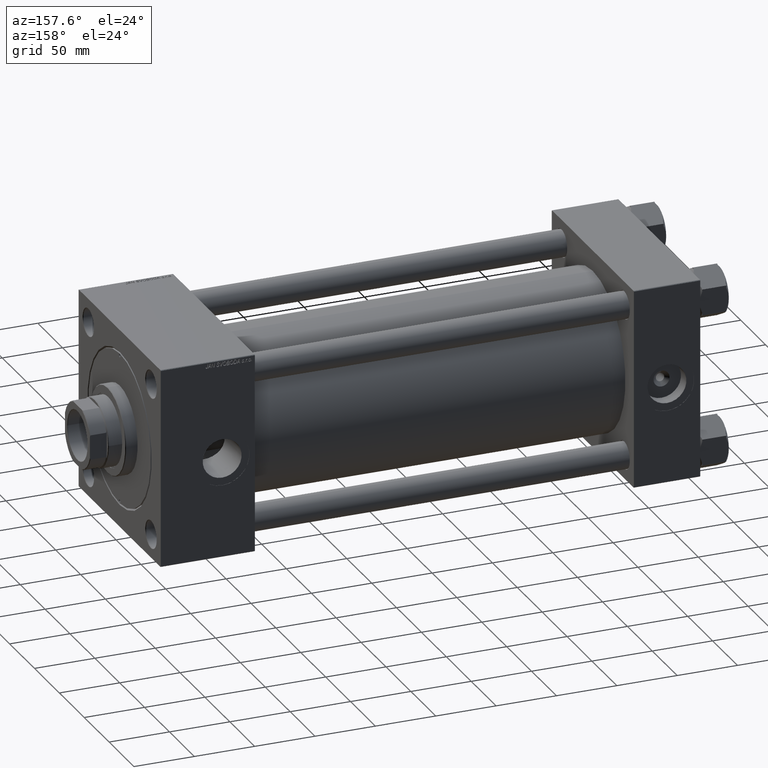
[diagram: clean part render]
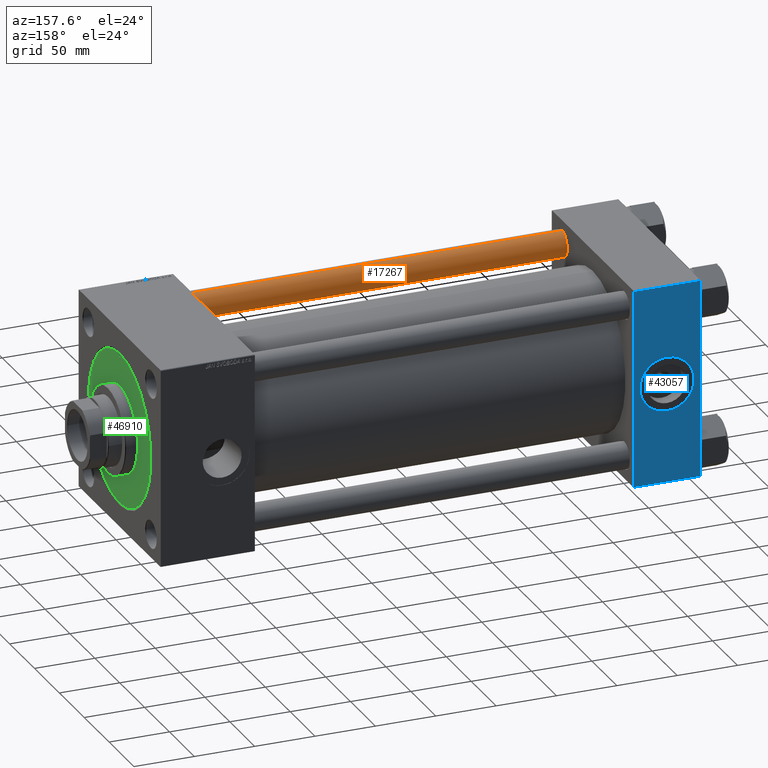
[diagram: same view with three faces highlighted in distinct colors, each labeled with its STEP entity id]
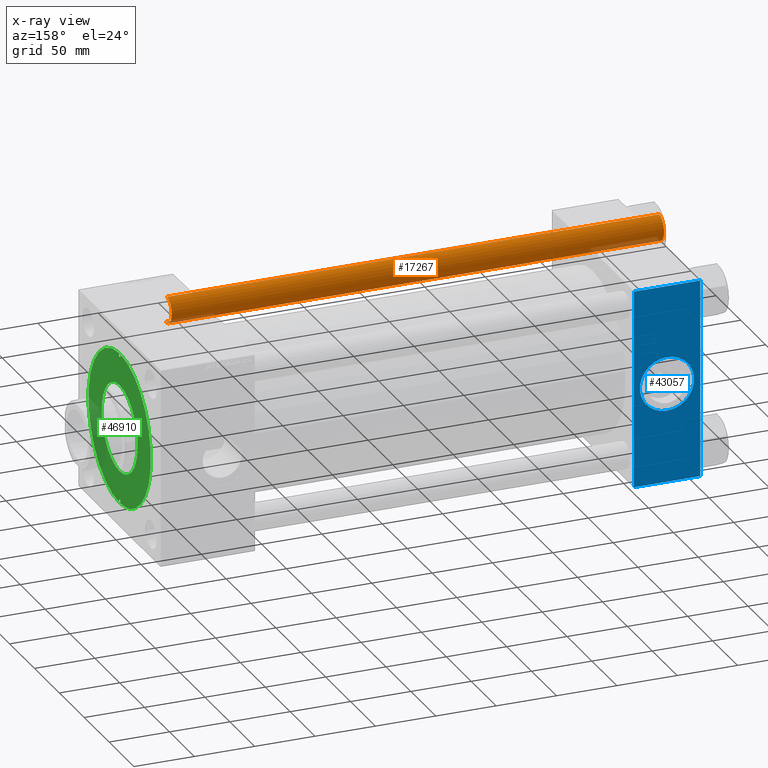
[diagram: x-ray of the same camera — body ghosted, the three highlighted faces saturated]
A machine part, auxiliary view with three faces highlighted in distinct colors.
The next image is the same camera in x-ray (body ghosted, the three faces saturated) — at least one of them is partly hidden behind the body in this view.
Their STEP definitions:

[orange] entity #17267 — the highlighted cylindrical surface (edge-blend (fillet) strip) has radius 11 mm, axis along (1, 0, -0).
#126 = CIRCLE ( 'NONE', #16585, 11.00000000000000000 ) ;
#4199 = EDGE_CURVE ( 'NONE', #48759, #41377, #12937, .T. ) ;
#5241 = DIRECTION ( 'NONE',  ( -0.000000000000000000, -0.000000000000000000, 1.000000000000000000 ) ) ;
#5633 = CARTESIAN_POINT ( 'NONE',  ( 11.00000000000000000, 1.347111479062088405E-15, 409.0000000000000000 ) ) ;
#5896 = CARTESIAN_POINT ( 'NONE',  ( 11.00000000000000000, 1.347111479062088405E-15, 408.5000000000000000 ) ) ;
#6061 = DIRECTION ( 'NONE',  ( -1.000000000000000000, 0.000000000000000000, 0.000000000000000000 ) ) ;
#7745 = ORIENTED_EDGE ( 'NONE', *, *, #45331, .T. ) ;
#7936 = ORIENTED_EDGE ( 'NONE', *, *, #17798, .F. ) ;
#8552 = CARTESIAN_POINT ( 'NONE',  ( 0.000000000000000000, 0.000000000000000000, 408.5000000000000000 ) ) ;
#8571 = DIRECTION ( 'NONE',  ( -0.000000000000000000, -0.000000000000000000, -1.000000000000000000 ) ) ;
#10871 = VERTEX_POINT ( 'NONE', #14833 ) ;
#12665 = CARTESIAN_POINT ( 'NONE',  ( -11.00000000000000000, 0.000000000000000000, 0.4999999999999449329 ) ) ;
#12937 = LINE ( 'NONE', #28910, #25523 ) ;
#14499 = ORIENTED_EDGE ( 'NONE', *, *, #16336, .T. ) ;
#14824 = EDGE_LOOP ( 'NONE', ( #7936, #7745, #47570, #14499 ) ) ;
#14833 = CARTESIAN_POINT ( 'NONE',  ( 11.00000000000000000, 1.347111479062088405E-15, 0.4999999999999449329 ) ) ;
#16336 = EDGE_CURVE ( 'NONE', #41377, #10871, #39823, .T. ) ;
#16585 = AXIS2_PLACEMENT_3D ( 'NONE', #8552, #24250, #28381 ) ;
#17267 = ADVANCED_FACE ( 'NONE', ( #49801 ), #37457, .T. ) ;
#17798 = EDGE_CURVE ( 'NONE', #40748, #10871, #36521, .T. ) ;
#18381 = CARTESIAN_POINT ( 'NONE',  ( -11.00000000000000000, 0.000000000000000000, 408.5000000000000000 ) ) ;
#20814 = DIRECTION ( 'NONE',  ( -0.000000000000000000, -0.000000000000000000, -1.000000000000000000 ) ) ;
#21997 = DIRECTION ( 'NONE',  ( -0.000000000000000000, -0.000000000000000000, -1.000000000000000000 ) ) ;
#24250 = DIRECTION ( 'NONE',  ( 0.000000000000000000, 0.000000000000000000, -1.000000000000000000 ) ) ;
#25523 = VECTOR ( 'NONE', #8571, 1000.000000000000000 ) ;
#28381 = DIRECTION ( 'NONE',  ( 1.000000000000000000, 0.000000000000000000, 0.000000000000000000 ) ) ;
#28910 = CARTESIAN_POINT ( 'NONE',  ( -11.00000000000000000, 0.000000000000000000, 409.0000000000000000 ) ) ;
#36521 = LINE ( 'NONE', #5633, #48936 ) ;
#36634 = DIRECTION ( 'NONE',  ( 1.000000000000000000, 0.000000000000000000, 0.000000000000000000 ) ) ;
#37457 = CYLINDRICAL_SURFACE ( 'NONE', #48053, 11.00000000000000000 ) ;
#39823 = CIRCLE ( 'NONE', #47194, 11.00000000000000000 ) ;
#40501 = CARTESIAN_POINT ( 'NONE',  ( 0.000000000000000000, 0.000000000000000000, 0.4999999999999449329 ) ) ;
#40748 = VERTEX_POINT ( 'NONE', #5896 ) ;
#41069 = CARTESIAN_POINT ( 'NONE',  ( 0.000000000000000000, 0.000000000000000000, 409.0000000000000000 ) ) ;
#41377 = VERTEX_POINT ( 'NONE', #12665 ) ;
#45331 = EDGE_CURVE ( 'NONE', #40748, #48759, #126, .T. ) ;
#47194 = AXIS2_PLACEMENT_3D ( 'NONE', #40501, #5241, #36634 ) ;
#47570 = ORIENTED_EDGE ( 'NONE', *, *, #4199, .T. ) ;
#48053 = AXIS2_PLACEMENT_3D ( 'NONE', #41069, #21997, #6061 ) ;
#48759 = VERTEX_POINT ( 'NONE', #18381 ) ;
#48936 = VECTOR ( 'NONE', #20814, 1000.000000000000000 ) ;
#49801 = FACE_OUTER_BOUND ( 'NONE', #14824, .T. ) ;

[blue] entity #43057 — the highlighted planar face has unit normal (0, 1, 0).
#742 = DIRECTION ( 'NONE',  ( 0.000000000000000000, 1.000000000000000000, 0.000000000000000000 ) ) ;
#931 = CARTESIAN_POINT ( 'NONE',  ( 55.00000000000000000, 82.50000000000002842, 82.00000000000005684 ) ) ;
#2538 = EDGE_LOOP ( 'NONE', ( #26991, #4424 ) ) ;
#2650 = CARTESIAN_POINT ( 'NONE',  ( 27.50000000000000000, 82.50000000000002842, 0.000000000000000000 ) ) ;
#4424 = ORIENTED_EDGE ( 'NONE', *, *, #5611, .F. ) ;
#4741 = DIRECTION ( 'NONE',  ( 0.000000000000000000, 0.000000000000000000, -1.000000000000000000 ) ) ;
#4819 = ORIENTED_EDGE ( 'NONE', *, *, #25281, .T. ) ;
#4861 = CARTESIAN_POINT ( 'NONE',  ( 27.50000000000000000, 82.50000000000002842, 0.000000000000000000 ) ) ;
#5611 = EDGE_CURVE ( 'NONE', #22377, #13958, #23979, .T. ) ;
#5729 = CIRCLE ( 'NONE', #22980, 22.50000000000000711 ) ;
#5760 = CARTESIAN_POINT ( 'NONE',  ( 55.00000000000000000, 82.50000000000002842, -82.00000000000000000 ) ) ;
#5770 = VERTEX_POINT ( 'NONE', #30128 ) ;
#6047 = VECTOR ( 'NONE', #40513, 1000.000000000000000 ) ;
#7361 = EDGE_LOOP ( 'NONE', ( #4819, #33137, #8450, #46141 ) ) ;
#8450 = ORIENTED_EDGE ( 'NONE', *, *, #11441, .F. ) ;
#8841 = LINE ( 'NONE', #40002, #23194 ) ;
#9835 = CARTESIAN_POINT ( 'NONE',  ( 55.00000000000000000, 82.50000000000002842, 82.50000000000002842 ) ) ;
#10311 = FACE_BOUND ( 'NONE', #2538, .T. ) ;
#11441 = EDGE_CURVE ( 'NONE', #5770, #21687, #8841, .T. ) ;
#11976 = LINE ( 'NONE', #931, #19923 ) ;
#12869 = VECTOR ( 'NONE', #30159, 1000.000000000000000 ) ;
#13958 = VERTEX_POINT ( 'NONE', #41130 ) ;
#14261 = CARTESIAN_POINT ( 'NONE',  ( 55.00000000000000000, 82.50000000000002842, 82.00000000000005684 ) ) ;
#14342 = EDGE_CURVE ( 'NONE', #28634, #21687, #20687, .T. ) ;
#17304 = LINE ( 'NONE', #9835, #12869 ) ;
#18330 = DIRECTION ( 'NONE',  ( 0.000000000000000000, 1.000000000000000000, 0.000000000000000000 ) ) ;
#19297 = CARTESIAN_POINT ( 'NONE',  ( 0.000000000000000000, 82.50000000000002842, -82.00000000000000000 ) ) ;
#19923 = VECTOR ( 'NONE', #36180, 1000.000000000000000 ) ;
#20687 = LINE ( 'NONE', #23774, #6047 ) ;
#21687 = VERTEX_POINT ( 'NONE', #19297 ) ;
#22377 = VERTEX_POINT ( 'NONE', #32754 ) ;
#22980 = AXIS2_PLACEMENT_3D ( 'NONE', #4861, #742, #33577 ) ;
#23194 = VECTOR ( 'NONE', #4741, 1000.000000000000000 ) ;
#23774 = CARTESIAN_POINT ( 'NONE',  ( 55.00000000000000000, 82.50000000000002842, -82.00000000000000000 ) ) ;
#23979 = CIRCLE ( 'NONE', #36296, 22.50000000000000711 ) ;
#25281 = EDGE_CURVE ( 'NONE', #48775, #28634, #17304, .T. ) ;
#26991 = ORIENTED_EDGE ( 'NONE', *, *, #36923, .F. ) ;
#28634 = VERTEX_POINT ( 'NONE', #5760 ) ;
#28686 = FACE_OUTER_BOUND ( 'NONE', #7361, .T. ) ;
#30128 = CARTESIAN_POINT ( 'NONE',  ( 0.000000000000000000, 82.50000000000002842, 82.00000000000005684 ) ) ;
#30159 = DIRECTION ( 'NONE',  ( 0.000000000000000000, 0.000000000000000000, -1.000000000000000000 ) ) ;
#32754 = CARTESIAN_POINT ( 'NONE',  ( 27.50000000000000355, 82.50000000000002842, -22.50000000000000711 ) ) ;
#33137 = ORIENTED_EDGE ( 'NONE', *, *, #14342, .T. ) ;
#33577 = DIRECTION ( 'NONE',  ( 0.000000000000000000, 0.000000000000000000, 1.000000000000000000 ) ) ;
#33729 = PLANE ( 'NONE',  #48535 ) ;
#33985 = DIRECTION ( 'NONE',  ( -0.000000000000000000, 1.000000000000000000, 0.000000000000000000 ) ) ;
#36180 = DIRECTION ( 'NONE',  ( 1.000000000000000000, 0.000000000000000000, 0.000000000000000000 ) ) ;
#36296 = AXIS2_PLACEMENT_3D ( 'NONE', #2650, #18330, #46124 ) ;
#36923 = EDGE_CURVE ( 'NONE', #13958, #22377, #5729, .T. ) ;
#40002 = CARTESIAN_POINT ( 'NONE',  ( 0.000000000000000000, 82.50000000000002842, 82.50000000000002842 ) ) ;
#40513 = DIRECTION ( 'NONE',  ( -1.000000000000000000, 0.000000000000000000, 0.000000000000000000 ) ) ;
#41130 = CARTESIAN_POINT ( 'NONE',  ( 27.50000000000000000, 82.50000000000002842, 22.50000000000000711 ) ) ;
#43057 = ADVANCED_FACE ( 'NONE', ( #10311, #28686 ), #33729, .T. ) ;
#44382 = DIRECTION ( 'NONE',  ( 0.000000000000000000, -0.000000000000000000, 1.000000000000000000 ) ) ;
#46124 = DIRECTION ( 'NONE',  ( 0.000000000000000000, 0.000000000000000000, 1.000000000000000000 ) ) ;
#46141 = ORIENTED_EDGE ( 'NONE', *, *, #48552, .T. ) ;
#48245 = CARTESIAN_POINT ( 'NONE',  ( 55.00000000000000000, 82.50000000000002842, 82.50000000000002842 ) ) ;
#48535 = AXIS2_PLACEMENT_3D ( 'NONE', #48245, #33985, #44382 ) ;
#48552 = EDGE_CURVE ( 'NONE', #5770, #48775, #11976, .T. ) ;
#48775 = VERTEX_POINT ( 'NONE', #14261 ) ;

[green] entity #46910 — the highlighted planar face has unit normal (1, 0, 0).
#426 = EDGE_CURVE ( 'NONE', #49363, #31628, #15024, .T. ) ;
#599 = DIRECTION ( 'NONE',  ( 1.000000000000000000, 0.000000000000000000, 0.000000000000000000 ) ) ;
#700 = CARTESIAN_POINT ( 'NONE',  ( -62.25000000000000000, 1.530808498934184175E-16, 28.69999999999999929 ) ) ;
#2512 = DIRECTION ( 'NONE',  ( 0.000000000000000000, 0.000000000000000000, 1.000000000000000000 ) ) ;
#4235 = CARTESIAN_POINT ( 'NONE',  ( 62.25000000000000000, 0.000000000000000000, 28.69999999999999929 ) ) ;
#4729 = DIRECTION ( 'NONE',  ( 1.000000000000000000, 0.000000000000000000, 0.000000000000000000 ) ) ;
#4804 = CARTESIAN_POINT ( 'NONE',  ( -36.00000000000000000, 0.000000000000000000, 28.69999999999999929 ) ) ;
#5386 = EDGE_LOOP ( 'NONE', ( #49419, #10781 ) ) ;
#5483 = CARTESIAN_POINT ( 'NONE',  ( 61.00000000000000000, 0.000000000000000000, 28.69999999999999929 ) ) ;
#5685 = CARTESIAN_POINT ( 'NONE',  ( 61.00000000000000000, 0.000000000000000000, 28.69999999999999929 ) ) ;
#5869 = DIRECTION ( 'NONE',  ( 1.000000000000000000, 0.000000000000000000, 0.000000000000000000 ) ) ;
#6864 = VERTEX_POINT ( 'NONE', #29324 ) ;
#10781 = ORIENTED_EDGE ( 'NONE', *, *, #26441, .F. ) ;
#11029 = CARTESIAN_POINT ( 'NONE',  ( -61.00000000000000000, 0.000000000000000000, 28.69999999999999929 ) ) ;
#11632 = FACE_BOUND ( 'NONE', #5386, .T. ) ;
#12579 = CIRCLE ( 'NONE', #37244, 62.75000000000000000 ) ;
#13652 = DIRECTION ( 'NONE',  ( 1.000000000000000000, 0.000000000000000000, 0.000000000000000000 ) ) ;
#13982 = EDGE_CURVE ( 'NONE', #44296, #28858, #12579, .T. ) ;
#14111 = CIRCLE ( 'NONE', #48643, 36.00000000000000000 ) ;
#14174 = ORIENTED_EDGE ( 'NONE', *, *, #23809, .F. ) ;
#15024 = CIRCLE ( 'NONE', #34759, 1.250000000000001110 ) ;
#15304 = CIRCLE ( 'NONE', #25219, 1.250000000000001110 ) ;
#15746 = FACE_BOUND ( 'NONE', #33763, .T. ) ;
#16084 = AXIS2_PLACEMENT_3D ( 'NONE', #11029, #49912, #26481 ) ;
#16989 = EDGE_CURVE ( 'NONE', #17102, #6864, #17617, .T. ) ;
#17102 = VERTEX_POINT ( 'NONE', #4804 ) ;
#17429 = EDGE_LOOP ( 'NONE', ( #14174, #36877 ) ) ;
#17617 = CIRCLE ( 'NONE', #27490, 36.00000000000000000 ) ;
#19113 = FACE_BOUND ( 'NONE', #17429, .T. ) ;
#19380 = CARTESIAN_POINT ( 'NONE',  ( 0.000000000000000000, 0.000000000000000000, 28.69999999999999929 ) ) ;
#22673 = DIRECTION ( 'NONE',  ( 0.000000000000000000, 0.000000000000000000, 1.000000000000000000 ) ) ;
#23809 = EDGE_CURVE ( 'NONE', #31628, #49363, #40781, .T. ) ;
#25195 = EDGE_CURVE ( 'NONE', #28501, #47581, #15304, .T. ) ;
#25219 = AXIS2_PLACEMENT_3D ( 'NONE', #5483, #35599, #599 ) ;
#25494 = CIRCLE ( 'NONE', #26323, 62.75000000000000000 ) ;
#26323 = AXIS2_PLACEMENT_3D ( 'NONE', #19380, #39730, #4729 ) ;
#26441 = EDGE_CURVE ( 'NONE', #47581, #28501, #30974, .T. ) ;
#26481 = DIRECTION ( 'NONE',  ( 1.000000000000000000, 0.000000000000000000, 0.000000000000000000 ) ) ;
#27342 = PLANE ( 'NONE',  #28951 ) ;
#27490 = AXIS2_PLACEMENT_3D ( 'NONE', #45233, #38272, #30049 ) ;
#28501 = VERTEX_POINT ( 'NONE', #4235 ) ;
#28858 = VERTEX_POINT ( 'NONE', #38416 ) ;
#28951 = AXIS2_PLACEMENT_3D ( 'NONE', #31210, #46147, #43049 ) ;
#29214 = ORIENTED_EDGE ( 'NONE', *, *, #46132, .F. ) ;
#29324 = CARTESIAN_POINT ( 'NONE',  ( 36.00000000000000000, 4.408728476930470856E-15, 28.69999999999999929 ) ) ;
#29840 = CARTESIAN_POINT ( 'NONE',  ( 59.75000000000000000, 1.530808498934184175E-16, 28.69999999999999929 ) ) ;
#30049 = DIRECTION ( 'NONE',  ( 1.000000000000000000, 0.000000000000000000, 0.000000000000000000 ) ) ;
#30051 = CARTESIAN_POINT ( 'NONE',  ( 0.000000000000000000, 0.000000000000000000, 28.69999999999999929 ) ) ;
#30974 = CIRCLE ( 'NONE', #44984, 1.250000000000001110 ) ;
#31210 = CARTESIAN_POINT ( 'NONE',  ( 0.000000000000000000, 0.000000000000000000, 28.69999999999999929 ) ) ;
#31326 = EDGE_CURVE ( 'NONE', #28858, #44296, #25494, .T. ) ;
#31628 = VERTEX_POINT ( 'NONE', #43519 ) ;
#33304 = ORIENTED_EDGE ( 'NONE', *, *, #16989, .F. ) ;
#33540 = CARTESIAN_POINT ( 'NONE',  ( -62.75000000000000000, 0.000000000000000000, 28.69999999999999929 ) ) ;
#33763 = EDGE_LOOP ( 'NONE', ( #33304, #29214 ) ) ;
#34759 = AXIS2_PLACEMENT_3D ( 'NONE', #42724, #22673, #38370 ) ;
#35599 = DIRECTION ( 'NONE',  ( 0.000000000000000000, 0.000000000000000000, 1.000000000000000000 ) ) ;
#36422 = CARTESIAN_POINT ( 'NONE',  ( 0.000000000000000000, 0.000000000000000000, 28.69999999999999929 ) ) ;
#36877 = ORIENTED_EDGE ( 'NONE', *, *, #426, .F. ) ;
#37244 = AXIS2_PLACEMENT_3D ( 'NONE', #30051, #2512, #5869 ) ;
#37334 = DIRECTION ( 'NONE',  ( 0.000000000000000000, 0.000000000000000000, 1.000000000000000000 ) ) ;
#38272 = DIRECTION ( 'NONE',  ( 0.000000000000000000, 0.000000000000000000, 1.000000000000000000 ) ) ;
#38370 = DIRECTION ( 'NONE',  ( 1.000000000000000000, 0.000000000000000000, 0.000000000000000000 ) ) ;
#38416 = CARTESIAN_POINT ( 'NONE',  ( 62.75000000000000000, 7.684658664649641591E-15, 28.69999999999999929 ) ) ;
#39730 = DIRECTION ( 'NONE',  ( 0.000000000000000000, 0.000000000000000000, 1.000000000000000000 ) ) ;
#40781 = CIRCLE ( 'NONE', #16084, 1.250000000000001110 ) ;
#42724 = CARTESIAN_POINT ( 'NONE',  ( -61.00000000000000000, 0.000000000000000000, 28.69999999999999929 ) ) ;
#42798 = ORIENTED_EDGE ( 'NONE', *, *, #31326, .T. ) ;
#43049 = DIRECTION ( 'NONE',  ( 1.000000000000000000, 0.000000000000000000, -0.000000000000000000 ) ) ;
#43519 = CARTESIAN_POINT ( 'NONE',  ( -59.75000000000000000, 0.000000000000000000, 28.69999999999999929 ) ) ;
#43888 = DIRECTION ( 'NONE',  ( 1.000000000000000000, 0.000000000000000000, 0.000000000000000000 ) ) ;
#44296 = VERTEX_POINT ( 'NONE', #33540 ) ;
#44984 = AXIS2_PLACEMENT_3D ( 'NONE', #5685, #37334, #13652 ) ;
#45233 = CARTESIAN_POINT ( 'NONE',  ( 0.000000000000000000, 0.000000000000000000, 28.69999999999999929 ) ) ;
#46064 = ORIENTED_EDGE ( 'NONE', *, *, #13982, .T. ) ;
#46132 = EDGE_CURVE ( 'NONE', #6864, #17102, #14111, .T. ) ;
#46147 = DIRECTION ( 'NONE',  ( 0.000000000000000000, 0.000000000000000000, 1.000000000000000000 ) ) ;
#46647 = FACE_OUTER_BOUND ( 'NONE', #48645, .T. ) ;
#46910 = ADVANCED_FACE ( 'NONE', ( #19113, #11632, #15746, #46647 ), #27342, .T. ) ;
#47581 = VERTEX_POINT ( 'NONE', #29840 ) ;
#48015 = DIRECTION ( 'NONE',  ( 0.000000000000000000, 0.000000000000000000, 1.000000000000000000 ) ) ;
#48643 = AXIS2_PLACEMENT_3D ( 'NONE', #36422, #48015, #43888 ) ;
#48645 = EDGE_LOOP ( 'NONE', ( #46064, #42798 ) ) ;
#49363 = VERTEX_POINT ( 'NONE', #700 ) ;
#49419 = ORIENTED_EDGE ( 'NONE', *, *, #25195, .F. ) ;
#49912 = DIRECTION ( 'NONE',  ( 0.000000000000000000, 0.000000000000000000, 1.000000000000000000 ) ) ;